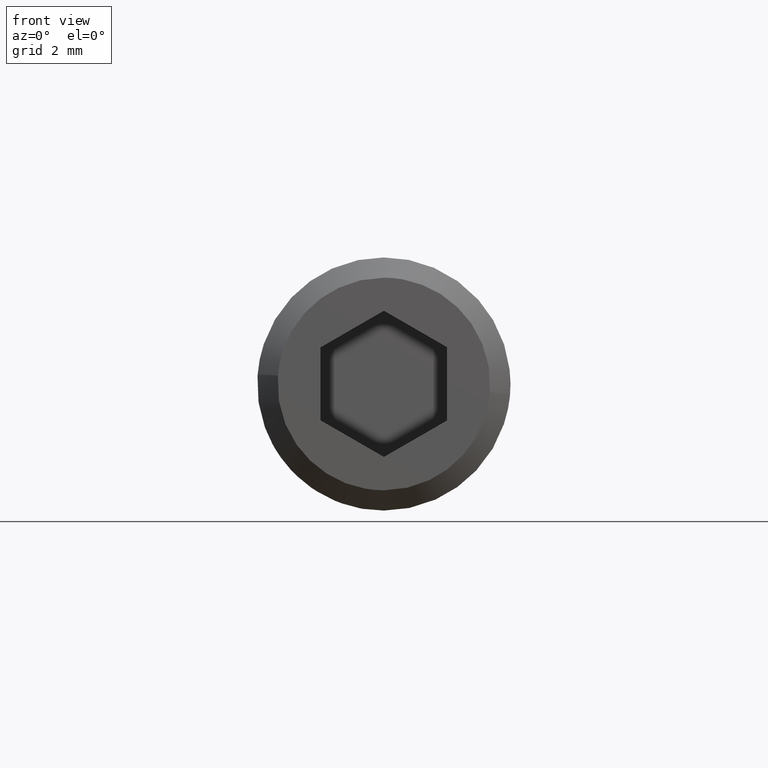
[diagram: clean part render]
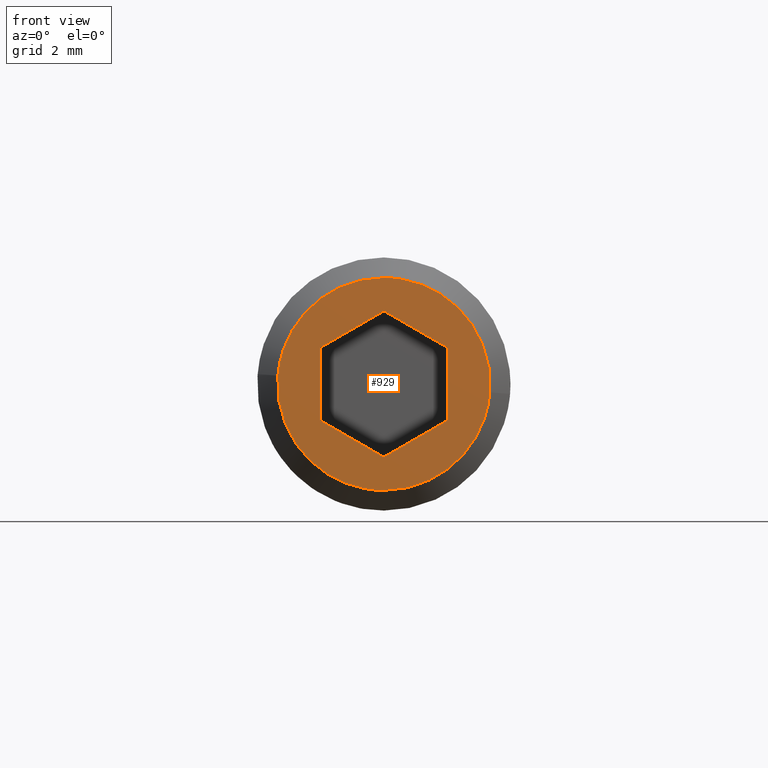
[diagram: same view with one face highlighted and labeled with its STEP entity id]
A machine part, front view. The second image highlights one B-rep face of the part: STEP entity #929.
In plain terms, the highlighted face is a freeform B-spline surface patch.
Its self-contained STEP definition (entity closure, byte-faithful):
#611=CARTESIAN_POINT('',(2.093526400839668,-11.649999999999750,-0.164764101030382));
#612=VERTEX_POINT('',#611);
#618=CARTESIAN_POINT('',(0.0,-11.650000000000000,-2.100000000000000));
#619=VERTEX_POINT('',#618);
#620=CARTESIAN_POINT('',(0.0,-11.650000000000000,-2.100000000000000));
#621=CARTESIAN_POINT('',(1.941220032478725,-11.650000000000002,-2.100000000000000));
#622=CARTESIAN_POINT('',(2.093526400839668,-11.649999999999755,-0.164764101030382));
#630=(BOUNDED_CURVE()B_SPLINE_CURVE(2,(#620,#621,#622),.UNSPECIFIED.,.F.,.U.)B_SPLINE_CURVE_WITH_KNOTS((3,3),(0.0,0.236331300632458),.UNSPECIFIED.)CURVE()GEOMETRIC_REPRESENTATION_ITEM()RATIONAL_B_SPLINE_CURVE((1.0,0.723120658605559,0.969723356171171))REPRESENTATION_ITEM(''));
#631=EDGE_CURVE('',#619,#612,#630,.T.);
#633=CARTESIAN_POINT('',(-2.093526400839669,-11.649999999999750,0.164764101030380));
#634=VERTEX_POINT('',#633);
#635=CARTESIAN_POINT('',(-2.093526400839669,-11.649999999999752,0.164764101030380));
#636=CARTESIAN_POINT('',(-2.100000000000001,-11.649999999999999,0.082509224718001));
#637=CARTESIAN_POINT('',(-2.100000000000000,-11.650000000000000,-5.143347E-016));
#638=CARTESIAN_POINT('',(-2.100000000000000,-11.650000000000002,-2.100000000000000));
#639=CARTESIAN_POINT('',(0.0,-11.650000000000000,-2.100000000000000));
#647=(BOUNDED_CURVE()B_SPLINE_CURVE(2,(#635,#636,#637,#638,#639),.UNSPECIFIED.,.F.,.U.)B_SPLINE_CURVE_WITH_KNOTS((3,2,3),(0.736331300632458,0.750000000000000,1.0),.UNSPECIFIED.)CURVE()GEOMETRIC_REPRESENTATION_ITEM()RATIONAL_B_SPLINE_CURVE((0.969723356171171,0.983986122580989,1.0,0.707106781186548,1.0))REPRESENTATION_ITEM(''));
#648=EDGE_CURVE('',#634,#619,#647,.T.);
#682=CARTESIAN_POINT('',(0.0,-11.650000000000000,2.100000000000000));
#683=VERTEX_POINT('',#682);
#684=CARTESIAN_POINT('',(0.0,-11.650000000000000,2.100000000000000));
#685=CARTESIAN_POINT('',(-1.941220032478720,-11.650000000000002,2.100000000000001));
#686=CARTESIAN_POINT('',(-2.093526400839668,-11.649999999999755,0.164764101030380));
#694=(BOUNDED_CURVE()B_SPLINE_CURVE(2,(#684,#685,#686),.UNSPECIFIED.,.F.,.U.)B_SPLINE_CURVE_WITH_KNOTS((3,3),(0.500000000000000,0.736331300632457),.UNSPECIFIED.)CURVE()GEOMETRIC_REPRESENTATION_ITEM()RATIONAL_B_SPLINE_CURVE((1.0,0.723120658605559,0.969723356171170))REPRESENTATION_ITEM(''));
#695=EDGE_CURVE('',#683,#634,#694,.T.);
#697=CARTESIAN_POINT('',(2.093526400839668,-11.649999999999755,-0.164764101030382));
#698=CARTESIAN_POINT('',(2.100000000000001,-11.650000000000000,-0.082509224718002));
#699=CARTESIAN_POINT('',(2.100000000000000,-11.650000000000000,-5.143347E-016));
#700=CARTESIAN_POINT('',(2.100000000000000,-11.650000000000002,2.100000000000000));
#701=CARTESIAN_POINT('',(0.0,-11.650000000000000,2.100000000000000));
#709=(BOUNDED_CURVE()B_SPLINE_CURVE(2,(#697,#698,#699,#700,#701),.UNSPECIFIED.,.F.,.U.)B_SPLINE_CURVE_WITH_KNOTS((3,2,3),(0.236331300632458,0.250000000000000,0.500000000000000),.UNSPECIFIED.)CURVE()GEOMETRIC_REPRESENTATION_ITEM()RATIONAL_B_SPLINE_CURVE((0.969723356171171,0.983986122580989,1.0,0.707106781186548,1.0))REPRESENTATION_ITEM(''));
#710=EDGE_CURVE('',#612,#683,#709,.T.);
#783=CARTESIAN_POINT('',(1.250000000000000,-11.650000000000000,0.721688000000000));
#784=VERTEX_POINT('',#783);
#785=CARTESIAN_POINT('',(0.0,-11.650000000000000,1.443376000000000));
#786=VERTEX_POINT('',#785);
#787=CARTESIAN_POINT('',(1.250000000000000,-11.650000000000000,0.721688000000000));
#788=CARTESIAN_POINT('',(0.0,-11.650000000000000,1.443376000000000));
#789=QUASI_UNIFORM_CURVE('',1,(#787,#788),.UNSPECIFIED.,.F.,.U.);
#790=EDGE_CURVE('',#784,#786,#789,.T.);
#811=CARTESIAN_POINT('',(1.250000000000000,-11.650000000000000,-0.721688000000000));
#812=VERTEX_POINT('',#811);
#813=CARTESIAN_POINT('',(1.250000000000000,-11.650000000000000,-0.721688000000000));
#814=CARTESIAN_POINT('',(1.250000000000000,-11.650000000000000,0.721688000000000));
#815=QUASI_UNIFORM_CURVE('',1,(#813,#814),.UNSPECIFIED.,.F.,.U.);
#816=EDGE_CURVE('',#812,#784,#815,.T.);
#833=CARTESIAN_POINT('',(0.0,-11.650000000000000,-1.443376000000000));
#834=VERTEX_POINT('',#833);
#835=CARTESIAN_POINT('',(0.0,-11.650000000000000,-1.443376000000000));
#836=CARTESIAN_POINT('',(1.250000000000000,-11.650000000000000,-0.721688000000000));
#837=QUASI_UNIFORM_CURVE('',1,(#835,#836),.UNSPECIFIED.,.F.,.U.);
#838=EDGE_CURVE('',#834,#812,#837,.T.);
#855=CARTESIAN_POINT('',(-1.250000000000000,-11.650000000000000,-0.721688000000000));
#856=VERTEX_POINT('',#855);
#857=CARTESIAN_POINT('',(-1.250000000000000,-11.650000000000000,-0.721688000000000));
#858=CARTESIAN_POINT('',(0.0,-11.650000000000000,-1.443376000000000));
#859=QUASI_UNIFORM_CURVE('',1,(#857,#858),.UNSPECIFIED.,.F.,.U.);
#860=EDGE_CURVE('',#856,#834,#859,.T.);
#877=CARTESIAN_POINT('',(-1.250000000000000,-11.650000000000000,0.721688000000000));
#878=VERTEX_POINT('',#877);
#879=CARTESIAN_POINT('',(-1.250000000000000,-11.650000000000000,0.721688000000000));
#880=CARTESIAN_POINT('',(-1.250000000000000,-11.650000000000000,-0.721688000000000));
#881=QUASI_UNIFORM_CURVE('',1,(#879,#880),.UNSPECIFIED.,.F.,.U.);
#882=EDGE_CURVE('',#878,#856,#881,.T.);
#899=CARTESIAN_POINT('',(0.0,-11.650000000000000,1.443376000000000));
#900=CARTESIAN_POINT('',(-1.250000000000000,-11.650000000000000,0.721688000000000));
#901=QUASI_UNIFORM_CURVE('',1,(#899,#900),.UNSPECIFIED.,.F.,.U.);
#902=EDGE_CURVE('',#786,#878,#901,.T.);
#910=CARTESIAN_POINT('',(-2.309148980726385,-11.650000000000000,2.309789898001045));
#911=CARTESIAN_POINT('',(-2.309148980726385,-11.650000000000000,-2.309789785348267));
#912=CARTESIAN_POINT('',(2.309149093379164,-11.650000000000000,2.309789898001045));
#913=CARTESIAN_POINT('',(2.309149093379164,-11.650000000000000,-2.309789785348267));
#914=B_SPLINE_SURFACE_WITH_KNOTS('',1,1,((#910,#912),(#911,#913)),.UNSPECIFIED.,.F.,.F.,.U.,(2,2),(2,2),(0.0,4.619579683349311),(0.0,4.618298074105550),.UNSPECIFIED.);
#915=ORIENTED_EDGE('',*,*,#631,.T.);
#916=ORIENTED_EDGE('',*,*,#710,.T.);
#917=ORIENTED_EDGE('',*,*,#695,.T.);
#918=ORIENTED_EDGE('',*,*,#648,.T.);
#919=EDGE_LOOP('',(#915,#916,#917,#918));
#920=FACE_OUTER_BOUND('',#919,.T.);
#921=ORIENTED_EDGE('',*,*,#902,.F.);
#922=ORIENTED_EDGE('',*,*,#790,.F.);
#923=ORIENTED_EDGE('',*,*,#816,.F.);
#924=ORIENTED_EDGE('',*,*,#838,.F.);
#925=ORIENTED_EDGE('',*,*,#860,.F.);
#926=ORIENTED_EDGE('',*,*,#882,.F.);
#927=EDGE_LOOP('',(#921,#922,#923,#924,#925,#926));
#928=FACE_BOUND('',#927,.T.);
#929=ADVANCED_FACE('',(#920,#928),#914,.T.);